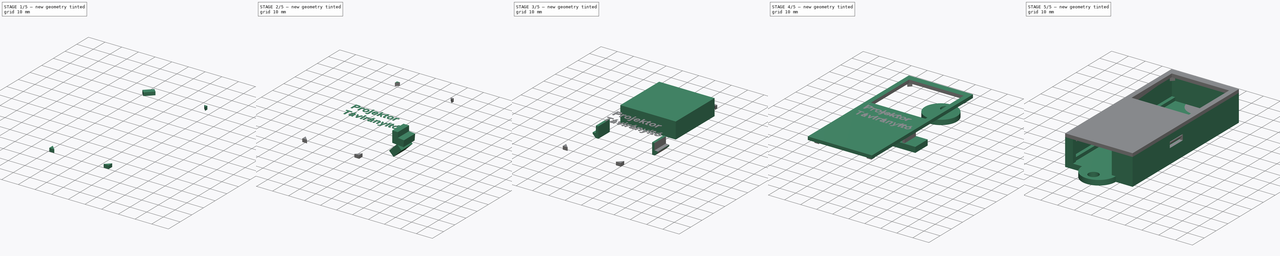
[diagram: build sequence overview — one tinted view per stage of 5, left to right]
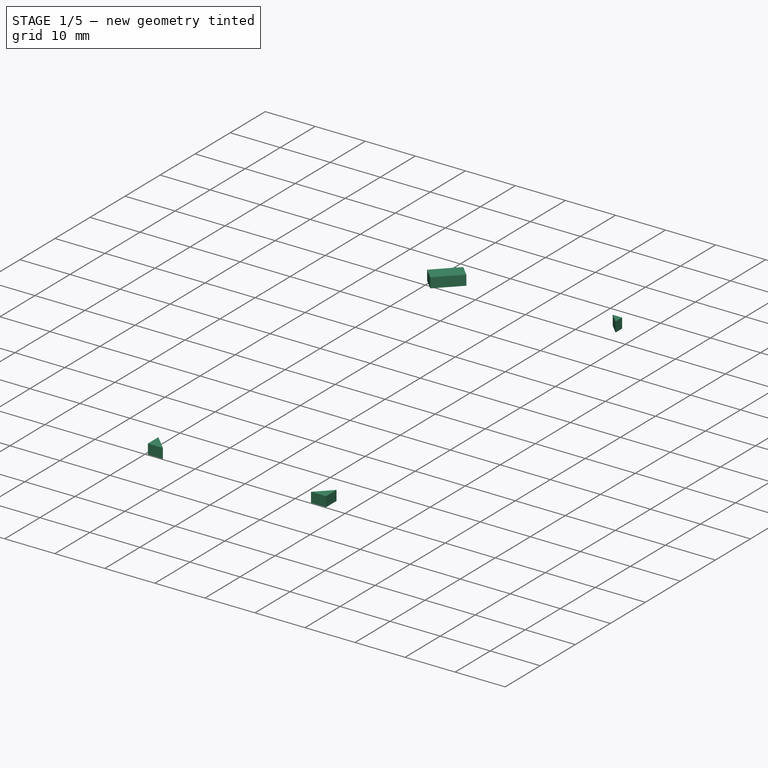
[diagram: stage 1 of 5 — iso view after this stage's code; geometry added in this stage tinted green]
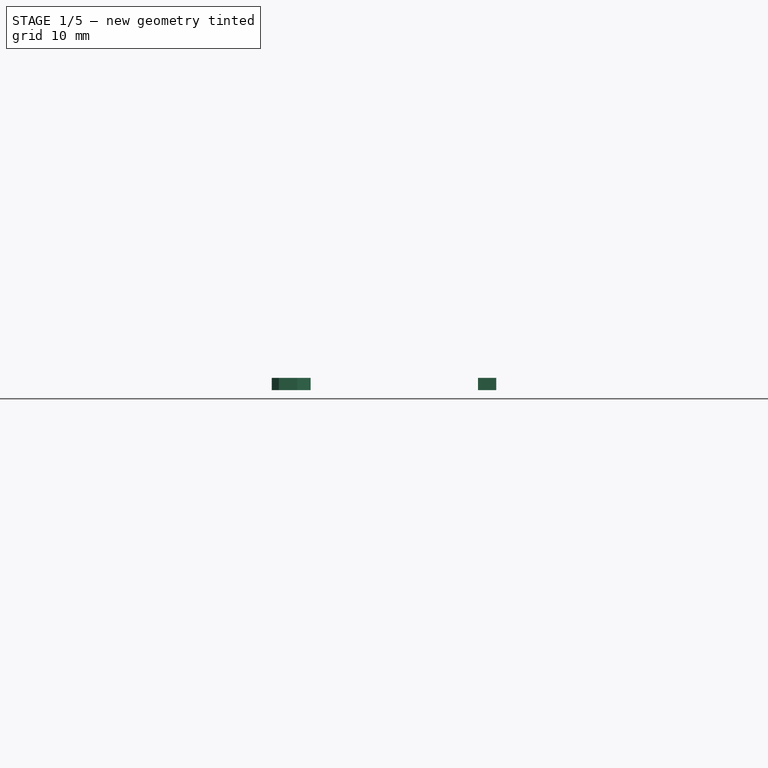
[diagram: stage 1 of 5 — front view after this stage's code; geometry added in this stage tinted green]
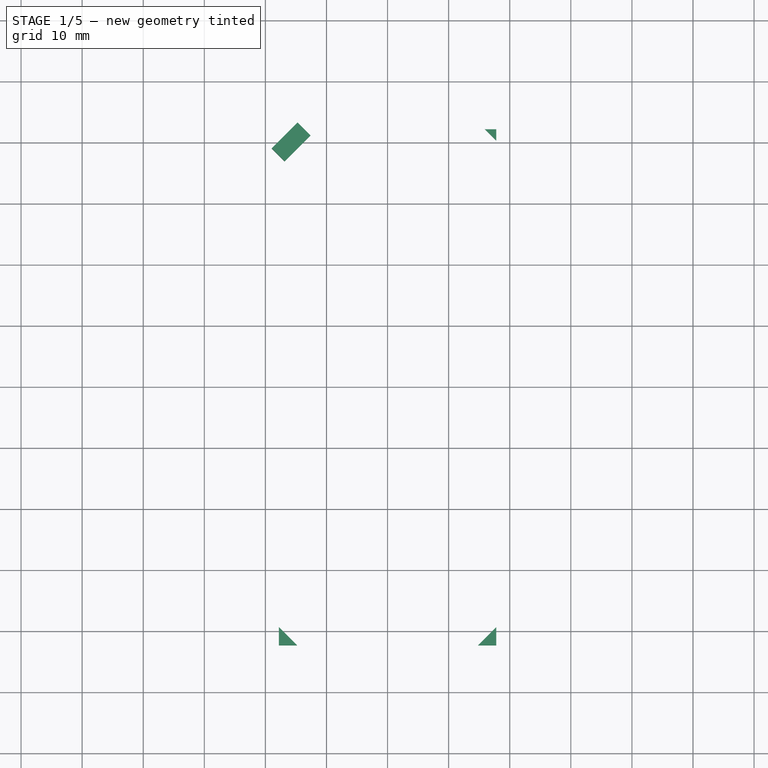
[diagram: stage 1 of 5 — top view after this stage's code; geometry added in this stage tinted green]
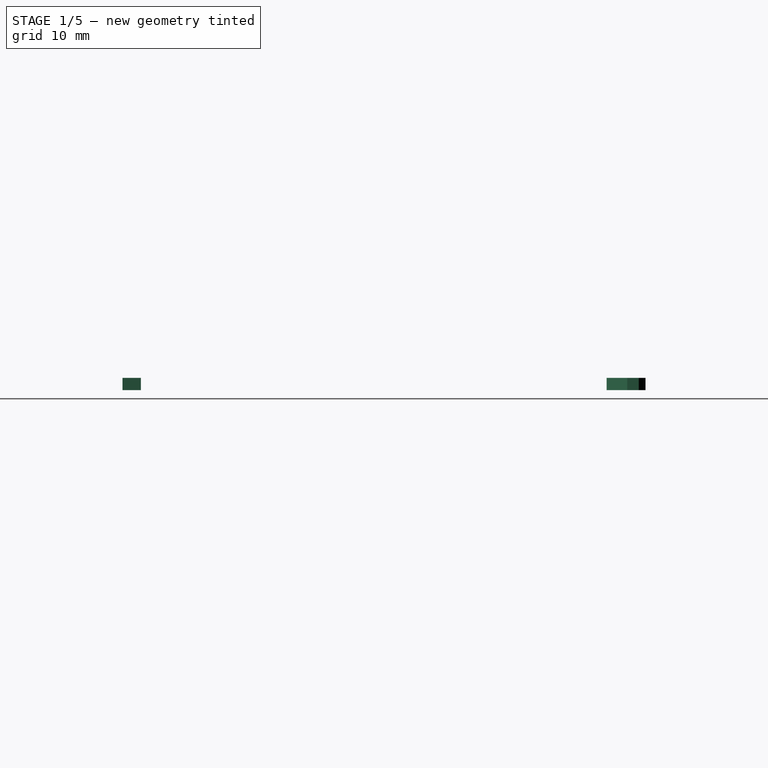
[diagram: stage 1 of 5 — right view after this stage's code; geometry added in this stage tinted green]
FCSTD DOCUMENT  (FreeCAD 0.21R33771 (Git))
Label: doboz_v4
License: All rights reserved
LicenseURL: http://en.wikipedia.org/wiki/All_rights_reserved
objects: App::Link×20, Part::Box×20, Part::Cut×13, Part::Feature×10, Part::Fuse×9, Sketcher::SketchObject×4, App::Part×4, Part::Cylinder×4, Part::MultiFuse×4, Part::Part2DObjectPython×4, Part::Extrusion×4, PartDesign::Pad×2, PartDesign::CoordinateSystem×1, PartDesign::Pocket×1, PartDesign::Body×1
note: 80 computed .brp shape members not serialized (recipe doc carries the construction recipe); baked Part::Feature solids carry a one-line shape summary decoded from their .brp

FEATURE [Part::Box] Box023  label="Cube023"
  AttacherType = Attacher::AttachEngine3D
  Height = 2
  Length = 6
  Placement = pos=(-16.8499,36.9415,14) rot=(0,0,1;0.785398rad)
  Width = 3
FEATURE [Part::Box] Box024  label="Cube024"
  AttacherType = Attacher::AttachEngine3D
  Height = 2
  Length = 3
  Placement = pos=(-17.7,39.2,14) rot=(0,0,1;0rad)
  Width = 3
FEATURE [Part::Box] Box025  label="Cube025"
  AttacherType = Attacher::AttachEngine3D
  Height = 2
  Length = 6
  Placement = pos=(-16.8499,36.9415,14) rot=(0,0,1;0.785398rad)
  Width = 3
FEATURE [Part::Cut] Cut015
  Base = -> Box024
  Placement = pos=(-24.4,24.5,0) rot=(0,0,-1;1.5708rad)
  Tool = -> Box025
FEATURE [Part::Box] Box026  label="Cube026"
  AttacherType = Attacher::AttachEngine3D
  Height = 2
  Length = 3
  Placement = pos=(-17.7,39.2,14) rot=(0,0,1;0rad)
  Width = 3
FEATURE [Part::Box] Box027  label="Cube027"
  AttacherType = Attacher::AttachEngine3D
  Height = 2
  Length = 6
  Placement = pos=(-16.2842,36.3758,14) rot=(0,0,1;0.785398rad)
  Width = 3
FEATURE [Part::Cut] Cut016
  Base = -> Box026
  Placement = pos=(0.1,-0.1,0) rot=(0,0,1;3.14159rad)
  Tool = -> Box027
FEATURE [Part::Box] Box028  label="Cube028"
  AttacherType = Attacher::AttachEngine3D
  Height = 2
  Length = 3
  Placement = pos=(-17.7,39.2,14) rot=(0,0,1;0rad)
  Width = 3
FEATURE [Part::Box] Box029  label="Cube029"
  AttacherType = Attacher::AttachEngine3D
  Height = 2
  Length = 6
  Placement = pos=(-16.2842,36.3758,14) rot=(0,0,1;0.785398rad)
  Width = 3
FEATURE [Part::Cut] Cut017
  Base = -> Box028
  Placement = pos=(24.4,-24.6,0) rot=(0,0,1;1.5708rad)
  Tool = -> Box029
FEATURE [Part::MultiFuse] Fusion013
  Shapes = -> [Cut016,Cut017]
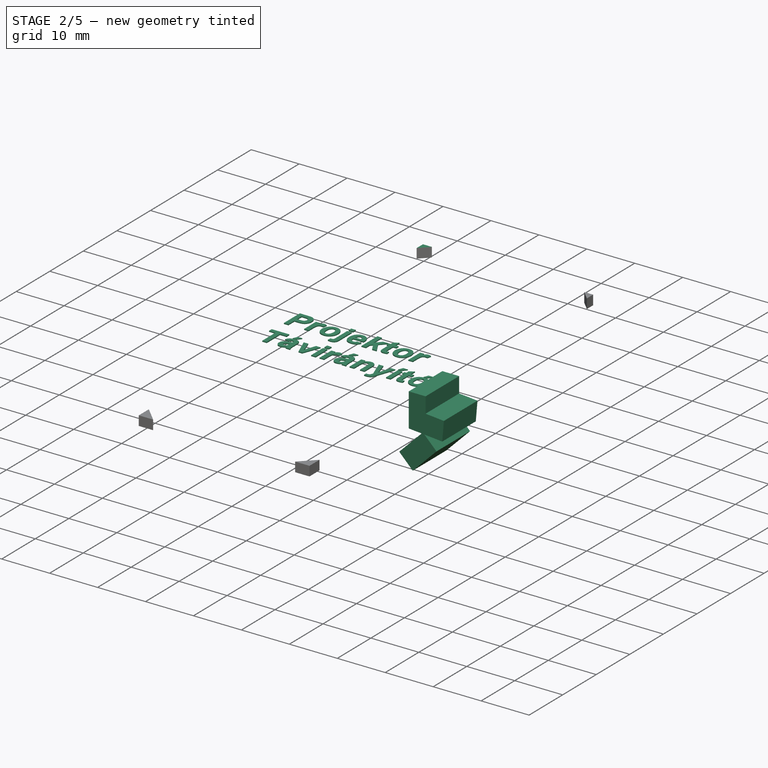
[diagram: stage 2 of 5 — iso view after this stage's code; geometry added in this stage tinted green]
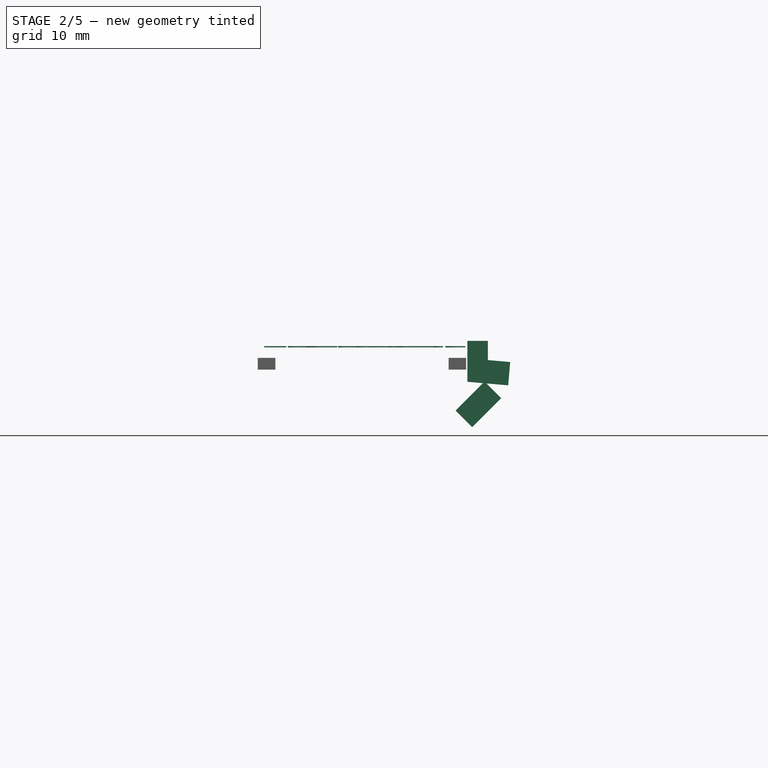
[diagram: stage 2 of 5 — front view after this stage's code; geometry added in this stage tinted green]
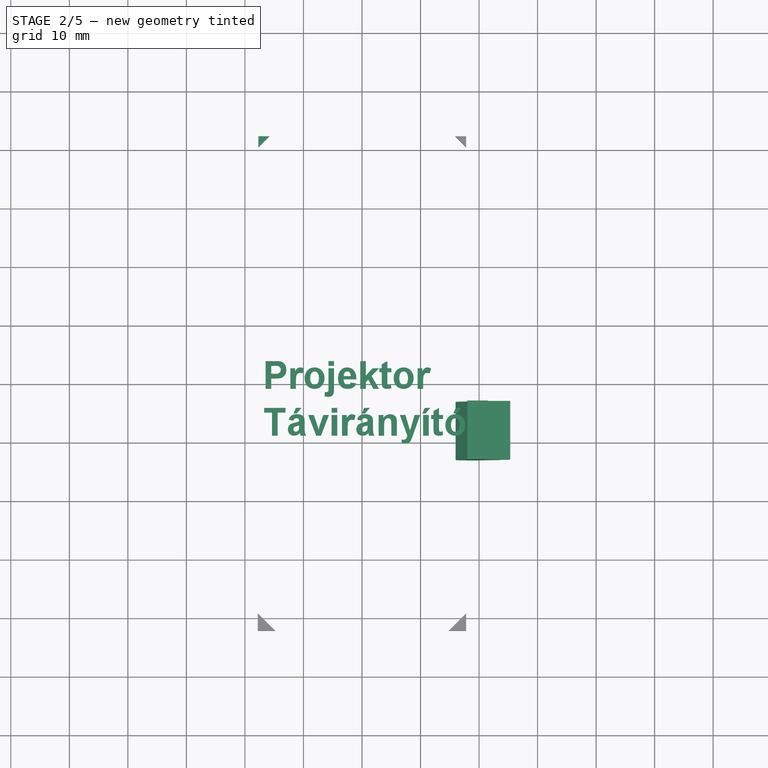
[diagram: stage 2 of 5 — top view after this stage's code; geometry added in this stage tinted green]
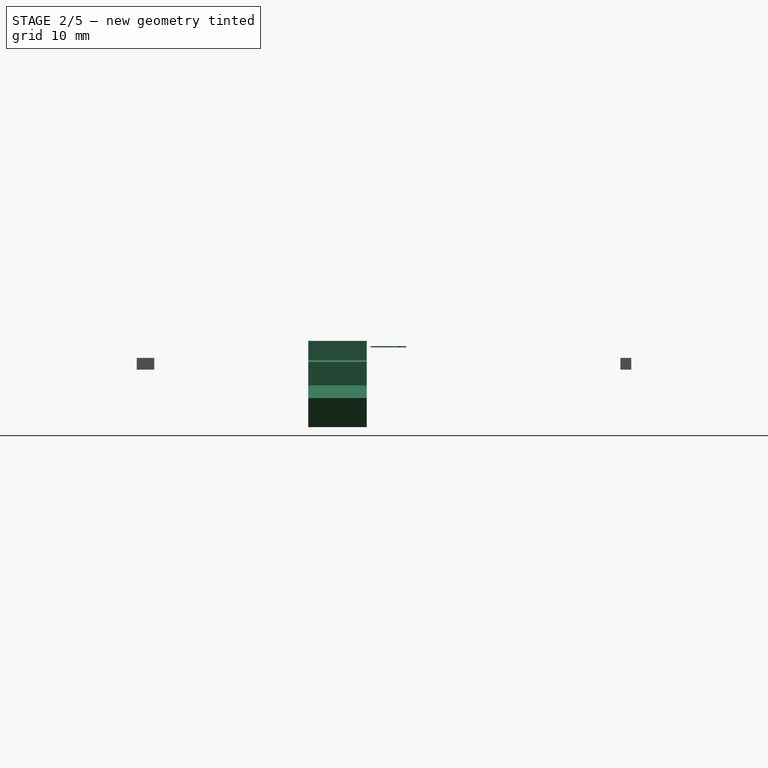
[diagram: stage 2 of 5 — right view after this stage's code; geometry added in this stage tinted green]
FEATURE [Part::Box] Box009  label="Cube009"
  AttacherType = Attacher::AttachEngine3D
  Height = 7
  Length = 4
  Placement = pos=(16,-13,7) rot=(0,1,0;0.785398rad)
  Width = 10
FEATURE [Part::Box] Box010  label="Cube010"
  AttacherType = Attacher::AttachEngine3D
  Height = 7
  Length = 4
  Placement = pos=(18.35,-13,15.9) rot=(0,1,0;1.65806rad)
  Width = 10
FEATURE [Part::Box] Box011  label="Cube011"
  AttacherType = Attacher::AttachEngine3D
  Height = 6.9
  Length = 3.5
  Placement = pos=(18,-13,12) rot=(0,0,1;0rad)
  Width = 10
FEATURE [Part::Fuse] Fusion003
  Base = -> Box009
  Tool = -> Box010
FEATURE [Part::Fuse] Fusion004
  Base = -> Box011
  Tool = -> Fusion003
FEATURE [Part::Part2DObjectPython] ShapeString  # Draft 2D object (typed FeaturePython)
  FontFile = <path>
  MakeFace = true
  Placement = pos=(-17,-1,20) rot=(0,0,1;0rad)
  Size = 5
  String = Projektor
  Tracking = 0
FEATURE [Part::Part2DObjectPython] ShapeString001  # Draft 2D object (typed FeaturePython)
  FontFile = <path>
  MakeFace = true
  Placement = pos=(-17,-9,20) rot=(0,0,1;0rad)
  Size = 5
  String = Távirányító
  Tracking = 0
FEATURE [Part::Extrusion] Extrude
  Base = -> ShapeString
  Dir = (0,0,1)
  DirMode = 2
  FaceMakerClass = Part::FaceMakerBullseye
  LengthFwd = 0.2
  LengthRev = 0
  Placement = pos=(0,0,0.1) rot=(0,0,1;0rad)
  Solid = false
  Symmetric = false
FEATURE [Part::Extrusion] Extrude001
  Base = -> ShapeString001
  Dir = (0,0,1)
  DirMode = 2
  FaceMakerClass = Part::FaceMakerBullseye
  LengthFwd = 0.2
  LengthRev = 0
  Placement = pos=(0,0,0.1) rot=(0,0,1;0rad)
  Solid = false
  Symmetric = false
FEATURE [Part::Fuse] Fusion007  label="Felirat"
  Base = -> Extrude
  Placement = pos=(0,0,-2.3) rot=(0,0,1;0rad)
  Tool = -> Extrude001
FEATURE [Part::Box] Box022  label="Cube022"
  AttacherType = Attacher::AttachEngine3D
  Height = 2
  Length = 3
  Placement = pos=(-17.7,39.2,14) rot=(0,0,1;0rad)
  Width = 3
FEATURE [Part::Cut] Cut014
  Base = -> Box022
  Tool = -> Box023
FEATURE [Part::Fuse] Fusion012
  Base = -> Cut014
  Tool = -> Cut015
FEATURE [Part::MultiFuse] Fusion014  label="Pockok"
  Shapes = -> [Fusion013,Fusion012]
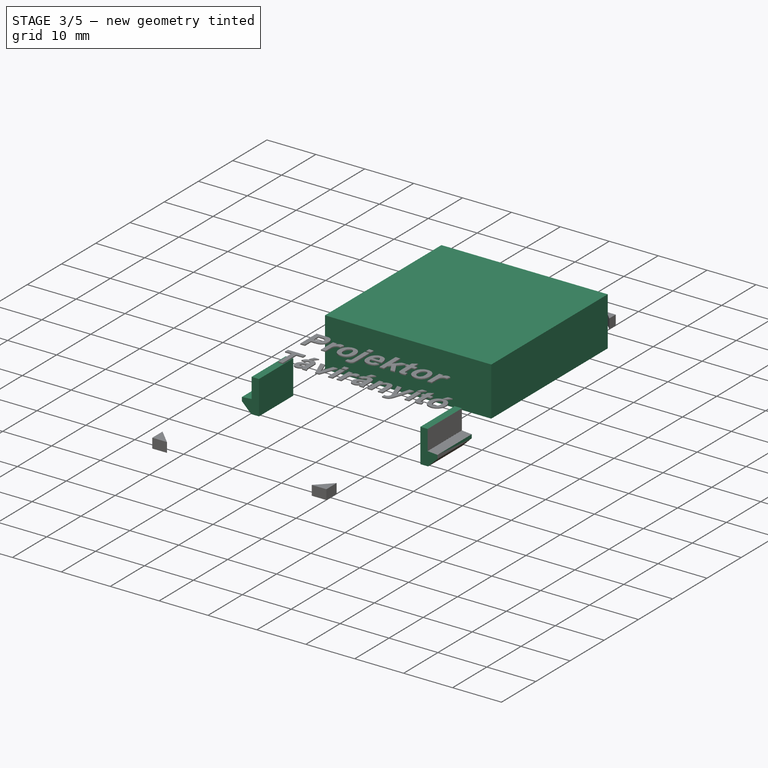
[diagram: stage 3 of 5 — iso view after this stage's code; geometry added in this stage tinted green]
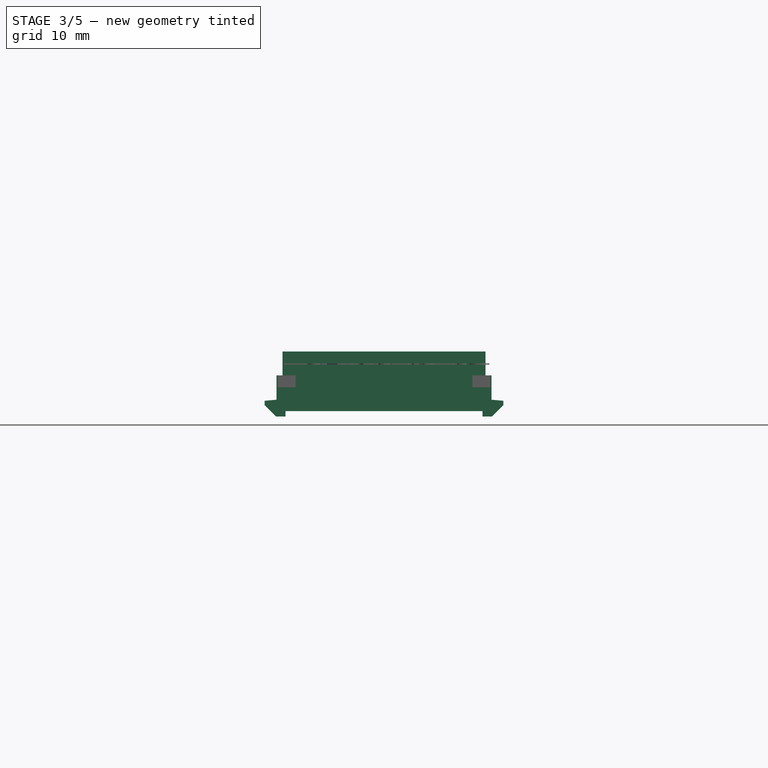
[diagram: stage 3 of 5 — front view after this stage's code; geometry added in this stage tinted green]
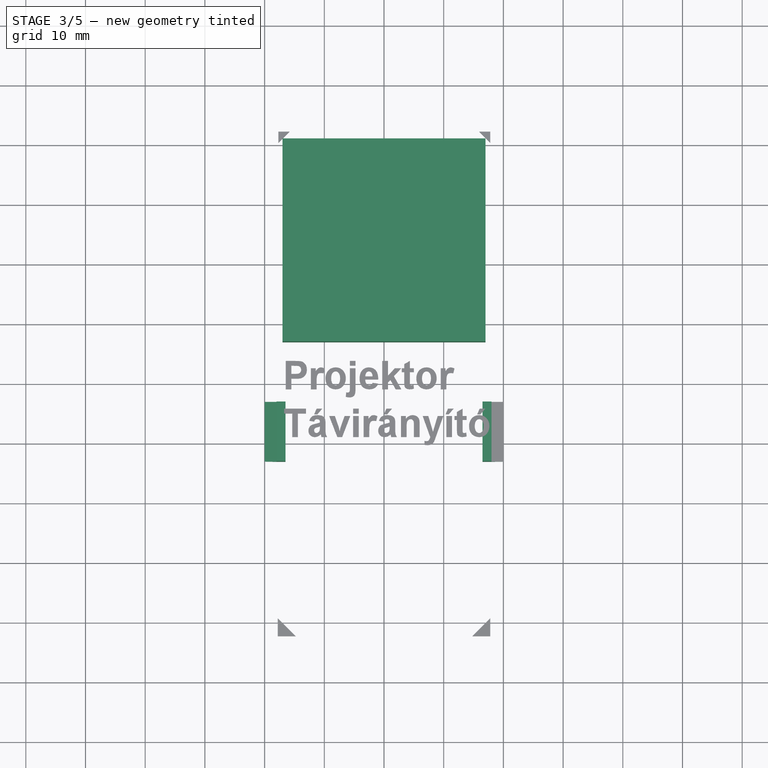
[diagram: stage 3 of 5 — top view after this stage's code; geometry added in this stage tinted green]
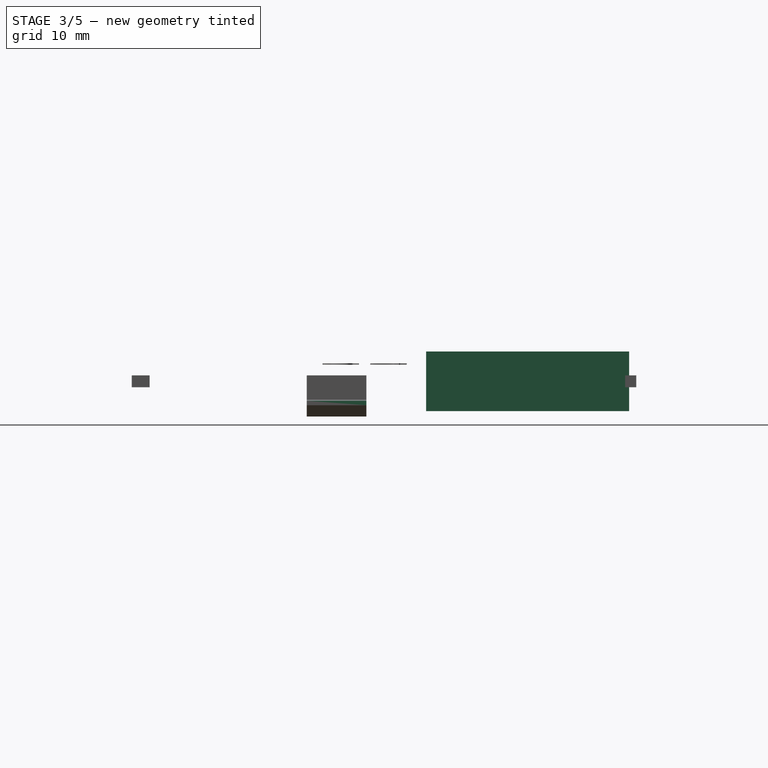
[diagram: stage 3 of 5 — right view after this stage's code; geometry added in this stage tinted green]
FEATURE [Part::Box] Box003  label="Cube003"
  AttacherType = Attacher::AttachEngine3D
  Height = 10
  Length = 34
  Placement = pos=(-17,7,10) rot=(0,0,1;0rad)
  Width = 34
FEATURE [Part::Box] Box004  label="Cube004"
  AttacherType = Attacher::AttachEngine3D
  Height = 6.9
  Length = 3.5
  Placement = pos=(16.5,-13,9.1) rot=(0,0,1;0rad)
  Width = 10
FEATURE [Part::Box] Box005  label="Cube005"
  AttacherType = Attacher::AttachEngine3D
  Height = 7
  Length = 4
  Placement = pos=(16,-13,7) rot=(0,1,0;0.785398rad)
  Width = 10
FEATURE [Part::Box] Box006  label="Cube006"
  AttacherType = Attacher::AttachEngine3D
  Height = 7
  Length = 4
  Placement = pos=(18.35,-13,15.9) rot=(0,1,0;1.65806rad)
  Width = 10
FEATURE [Part::Box] Box007  label="Cube007"
  AttacherType = Attacher::AttachEngine3D
  Height = 6.9
  Length = 3.5
  Placement = pos=(18,-13,12) rot=(0,0,1;0rad)
  Width = 10
FEATURE [Part::Fuse] Fusion001
  Base = -> Box005
  Tool = -> Box006
FEATURE [Part::Fuse] Fusion002
  Base = -> Box007
  Tool = -> Fusion001
FEATURE [Part::Cut] Cut006  label="Jobb karom"
  Base = -> Box004
  Tool = -> Fusion002
FEATURE [Part::Box] Box008  label="Cube008"
  AttacherType = Attacher::AttachEngine3D
  Height = 6.9
  Length = 3.5
  Placement = pos=(16.5,-13,9.1) rot=(0,0,1;0rad)
  Width = 10
FEATURE [Part::Cut] Cut007  label="Bal karom"
  Base = -> Box008
  Placement = pos=(-2e-15,-16,0) rot=(0,0,1;3.14159rad)
  Tool = -> Fusion004
FEATURE [Part::Fuse] Fusion005  label="Karmok"
  Base = -> Cut006
  Tool = -> Cut007
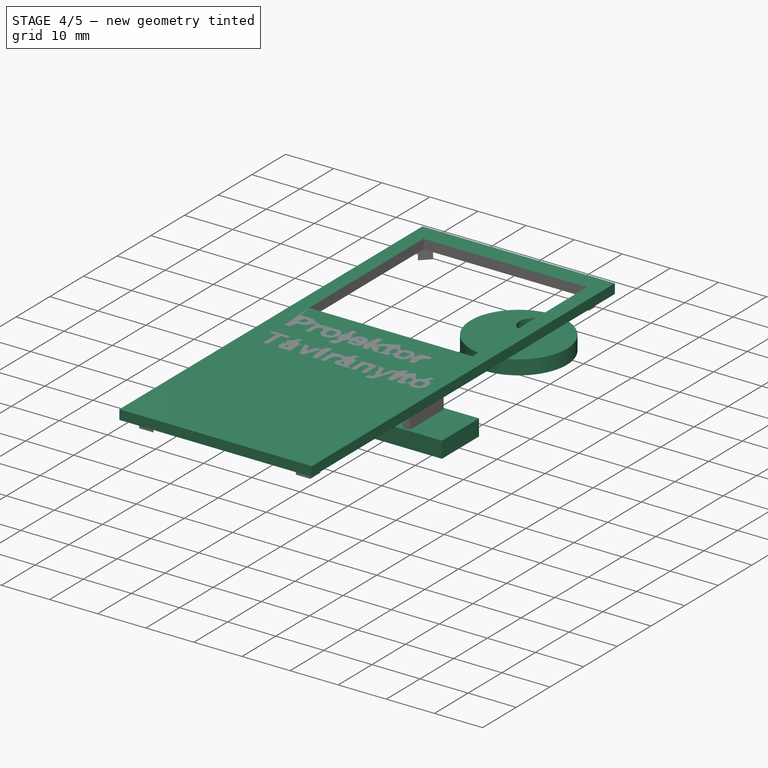
[diagram: stage 4 of 5 — iso view after this stage's code; geometry added in this stage tinted green]
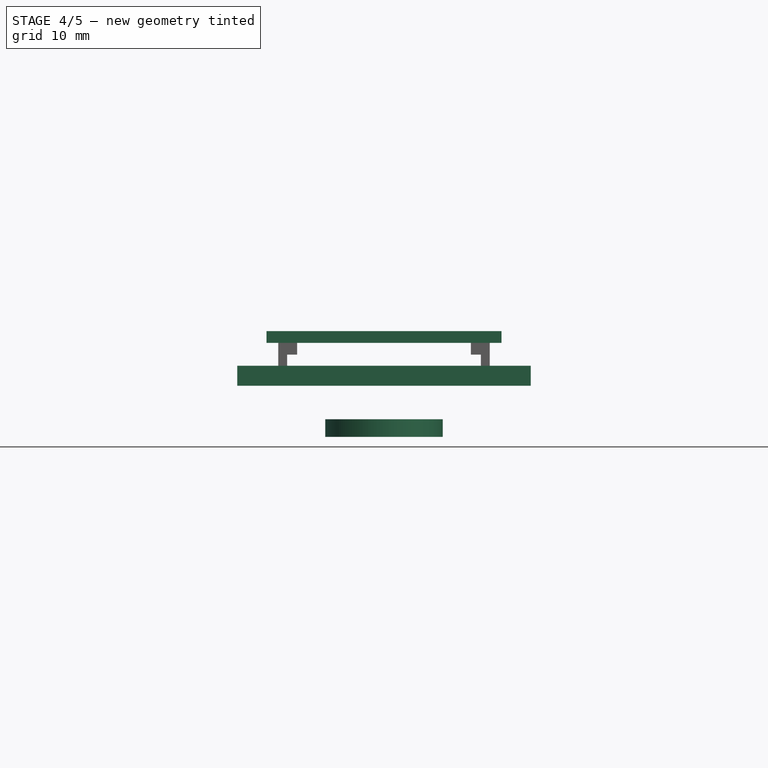
[diagram: stage 4 of 5 — front view after this stage's code; geometry added in this stage tinted green]
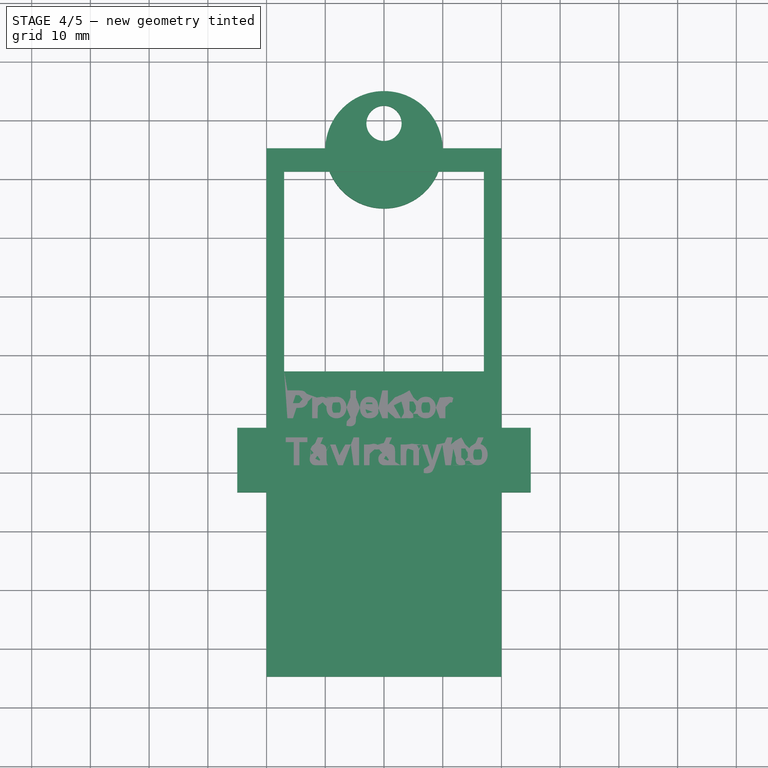
[diagram: stage 4 of 5 — top view after this stage's code; geometry added in this stage tinted green]
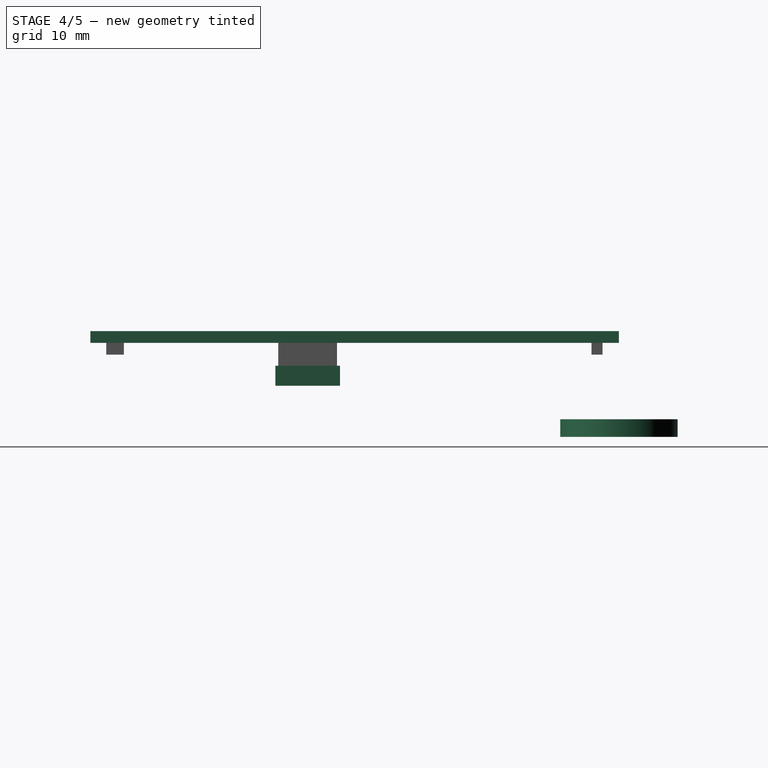
[diagram: stage 4 of 5 — right view after this stage's code; geometry added in this stage tinted green]
FEATURE [Part::Cylinder] Cylinder002
  Angle = 360
  AttacherType = Attacher::AttachEngine3D
  FirstAngle = 0
  Height = 3
  Placement = pos=(0,45,0) rot=(0,0,1;0rad)
  Radius = 10
  SecondAngle = 0
FEATURE [Part::Cylinder] Cylinder003
  Angle = 360
  AttacherType = Attacher::AttachEngine3D
  FirstAngle = 0
  Height = 5
  Placement = pos=(0,49.5,-1) rot=(0,0,1;0rad)
  Radius = 3
  SecondAngle = 0
FEATURE [Part::Cut] Cut003  label="felso ful"
  Base = -> Cylinder002
  Tool = -> Cylinder003
FEATURE [Part::Box] Box002  label="Cube002"
  AttacherType = Attacher::AttachEngine3D
  Height = 3.4
  Length = 50
  Placement = pos=(-25,-13.5,8.7) rot=(0,0,1;0rad)
  Width = 11
FEATURE [Sketcher::SketchObject] Sketch002
  FullyConstrained = true
  MapMode = 5
  Placement = pos=(0,0,16) rot=(0,0,1;0rad)
  sketch-geometry (4):
    g0: LineSegment StartX=-20 StartY=45 StartZ=0 EndX=20 EndY=45 EndZ=0
    g1: LineSegment StartX=20 StartY=45 StartZ=0 EndX=20 EndY=-45 EndZ=0
    g2: LineSegment StartX=20 StartY=-45 StartZ=0 EndX=-20 EndY=-45 EndZ=0
    g3: LineSegment StartX=-20 StartY=-45 StartZ=0 EndX=-20 EndY=45 EndZ=0
  constraints (11):
    c: Coincident(g0,g1)
    c: Coincident(g1,g2)
    c: Coincident(g2,g3)
    c: Coincident(g3,g0)
    c: Horizontal(g0)
    c: Horizontal(g2)
    c: Vertical(g1)
    c: Vertical(g3)
    c: Symmetric(g2,g0,g-1)
    c: DistanceX(g0,g0) = 40
    c: DistanceY(g1,g1) = 90
FEATURE [PartDesign::Pad] Pad001
  Direction = (0,0,1)
  Length = 2
  Length2 = 10
  Placement = pos=(0,0,16) rot=(0,0,1;0rad)
  Profile = -> Sketch002
  ReferenceAxis = -> Sketch002 [N_Axis]
  Type = 0
FEATURE [Part::Cut] Cut005  label="Teto"
  Base = -> Pad001
  Tool = -> Box003
FEATURE [Part::Fuse] Fusion006  label="Teto001"
  Base = -> Cut005
  Tool = -> Fusion005
FEATURE [Part::Cut] Cut008  label="Felso"
  Base = -> Fusion006
  Tool = -> Fusion007
FEATURE [Part::Part2DObjectPython] ShapeString002  # Draft 2D object (typed FeaturePython)
  FontFile = <path>
  MakeFace = true
  Placement = pos=(-17,-1,20) rot=(0,0,1;0rad)
  Size = 5
  String = Projektor
  Tracking = 0
FEATURE [Part::Extrusion] Extrude002
  Base = -> ShapeString002
  Dir = (0,0,1)
  DirMode = 2
  FaceMakerClass = Part::FaceMakerBullseye
  LengthFwd = 0.2
  LengthRev = 0
  Placement = pos=(0,0,0.1) rot=(0,0,1;0rad)
  Solid = false
  Symmetric = false
FEATURE [Part::Part2DObjectPython] ShapeString003  # Draft 2D object (typed FeaturePython)
  FontFile = <path>
  MakeFace = true
  Placement = pos=(-17,-9,20) rot=(0,0,1;0rad)
  Size = 5
  String = Távirányító
  Tracking = 0
FEATURE [Part::Extrusion] Extrude003
  Base = -> ShapeString003
  Dir = (0,0,1)
  DirMode = 2
  FaceMakerClass = Part::FaceMakerBullseye
  LengthFwd = 0.2
  LengthRev = 0
  Placement = pos=(0,0,0.1) rot=(0,0,1;0rad)
  Solid = false
  Symmetric = false
FEATURE [Part::Fuse] Fusion016  label="Felirat001"
  Base = -> Extrude002
  Placement = pos=(0,0,-2.3) rot=(0,0,1;0rad)
  Tool = -> Extrude003
FEATURE [Part::MultiFuse] Fusion015  label="Felso2"
  Shapes = -> [Cut008,Fusion014]
note: 4 file-system paths scrubbed to <path> (originals preserved in the JSON sidecar)
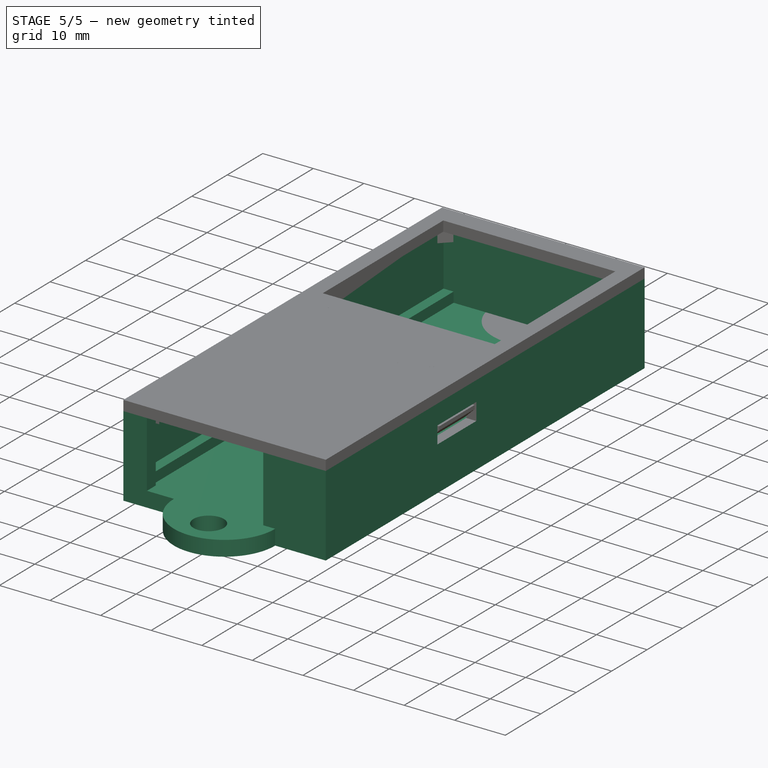
[diagram: stage 5 of 5 — iso view after this stage's code; geometry added in this stage tinted green]
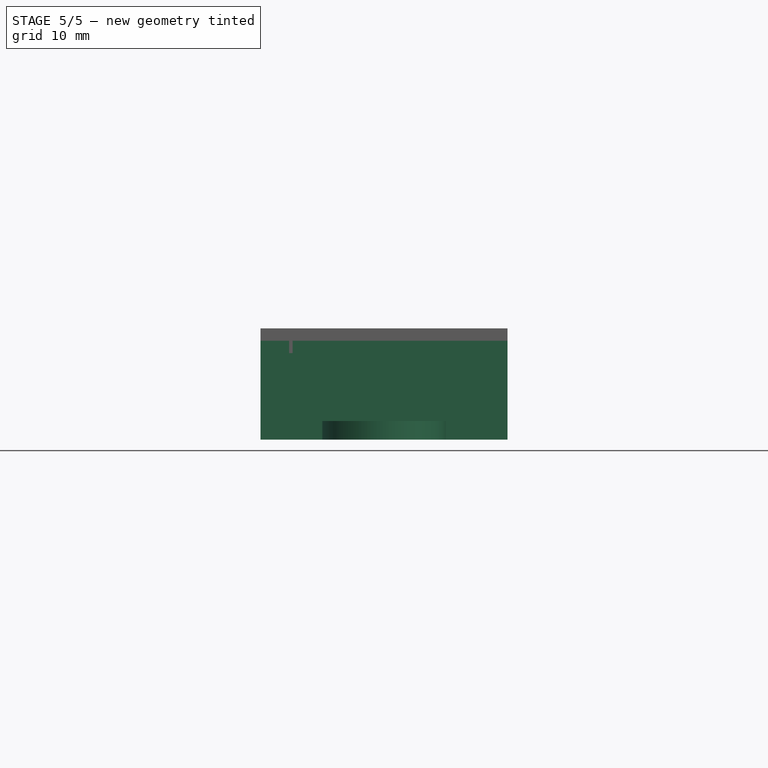
[diagram: stage 5 of 5 — front view after this stage's code; geometry added in this stage tinted green]
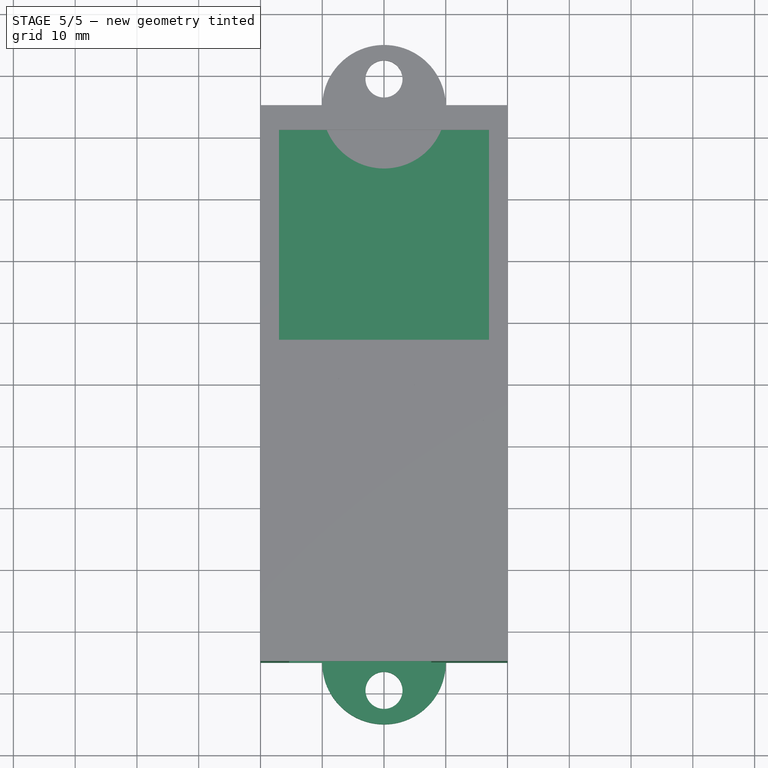
[diagram: stage 5 of 5 — top view after this stage's code; geometry added in this stage tinted green]
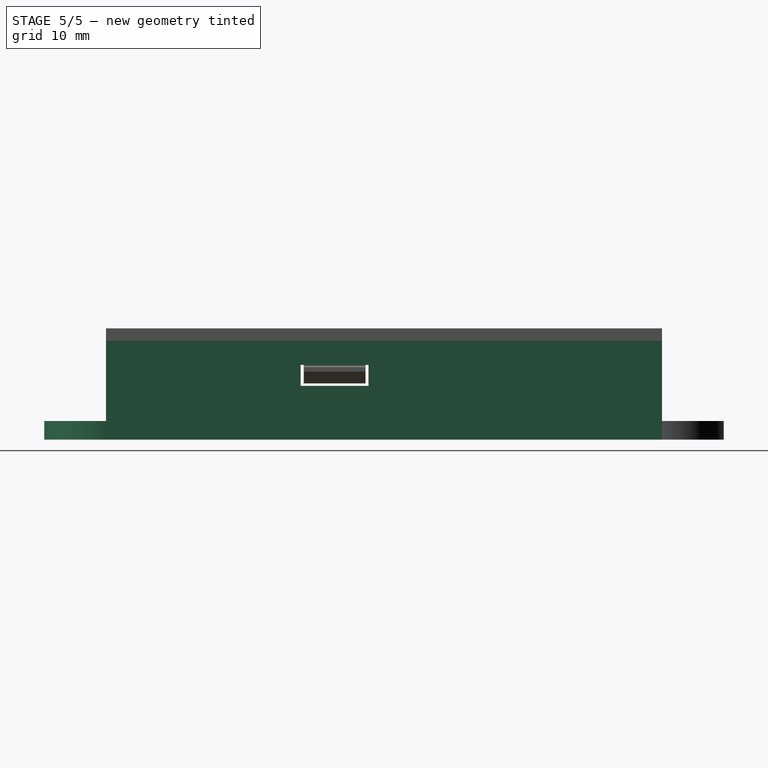
[diagram: stage 5 of 5 — right view after this stage's code; geometry added in this stage tinted green]
FEATURE [PartDesign::CoordinateSystem] Local_CS_c95c
  AttacherType = Attacher::AttachEngine3D
  MapMode = 2
  Support = -> [X_Axis001]
FEATURE [Part::Feature] Pcb_c95c
  shape: bbox 35.56 x 84.46 x 1.6 mm, 51 faces (baked)
FEATURE [Sketcher::SketchObject] PCB_Sketch_c95c
  FullyConstrained = false
  sketch-geometry (8):
    g0: LineSegment StartX=128.905 StartY=-49.53 StartZ=0 EndX=161.925 EndY=-49.53 EndZ=0
    g1: LineSegment StartX=163.195 StartY=-50.8 StartZ=0 EndX=163.195 EndY=-132.715 EndZ=0
    g2: LineSegment StartX=161.925 StartY=-133.985 StartZ=0 EndX=128.905 EndY=-133.985 EndZ=0
    g3: LineSegment StartX=127.635 StartY=-132.715 StartZ=0 EndX=127.635 EndY=-50.8 EndZ=0
    g4: ArcOfCircle CenterX=161.925 CenterY=-132.715 CenterZ=0 NormalX=0 NormalY=0 NormalZ=-1 AngleXU=3.14159 Radius=1.27 StartAngle=0 EndAngle=1.5708
    g5: ArcOfCircle CenterX=161.925 CenterY=-50.8 CenterZ=0 NormalX=0 NormalY=0 NormalZ=-1 AngleXU=1.5708 Radius=1.27 StartAngle=0 EndAngle=1.5708
    g6: ArcOfCircle CenterX=128.905 CenterY=-132.715 CenterZ=0 NormalX=0 NormalY=0 NormalZ=-1 AngleXU=-1.5708 Radius=1.27 StartAngle=0 EndAngle=1.5708
    g7: ArcOfCircle CenterX=128.905 CenterY=-50.8 CenterZ=0 NormalX=0 NormalY=0 NormalZ=-1 AngleXU=-1.04279e-06 Radius=1.27 StartAngle=0 EndAngle=1.5708
  constraints (8):
    c: Coincident(g3,g6)
    c: Coincident(g3,g7)
    c: Coincident(g2,g6)
    c: Coincident(g0,g7)
    c: Coincident(g2,g4)
    c: Coincident(g0,g5)
    c: Coincident(g1,g4)
    c: Coincident(g1,g5)
FEATURE [App::Part] Board_Geoms_c95c
  Group = -> [Pcb_c95c,PCB_Sketch_c95c]
  Origin = -> Origin
FEATURE [Part::Feature] Shape  label="J2_MC_01x03_G_3_5mm_12e7bac8dbaf"
  Placement = pos=(133.35,-127.8,0) rot=(0,0,1;0rad)
  shape: bbox 11.9 x 9.2 x 10.95 mm, 109 faces (baked)
FEATURE [Part::Feature] Shape001  label="R8_R_0805_2012Metric_695cc4dfc1c9"
  Placement = pos=(147.955,-105.045,0) rot=(0,0,-1;1.5708rad)
  shape: bbox 1.2 x 2 x 0.45 mm, 26 faces (baked)
FEATURE [App::Link] R8_R_0805_2012Metric_695cc4dfc1c9_ln_  label="R7_R_0805_2012Metric_1dec0fc7b793"
  LinkPlacement = pos=(140.335,-105.045,0) rot=(0,0,-1;1.5708rad)
  LinkedObject = -> Shape001
  Placement = pos=(140.335,-105.045,0) rot=(0,0,-1;1.5708rad)
FEATURE [App::Link] R8_R_0805_2012Metric_695cc4dfc1c9_ln_001  label="R2_R_0805_2012Metric_06d124cb7809"
  LinkPlacement = pos=(147.955,-85.455,0) rot=(0,0,-1;1.5708rad)
  LinkedObject = -> Shape001
  Placement = pos=(147.955,-85.455,0) rot=(0,0,-1;1.5708rad)
FEATURE [Part::Feature] Shape002  label="Y1_Crystal_SMD_HC49-SD_3ddabce48a06"
  Placement = pos=(158.75,-93.7575,0) rot=(0,0,-1;1.5708rad)
  shape: bbox 4.65 x 12.5 x 4 mm, 45 faces (baked)
FEATURE [App::Link] R8_R_0805_2012Metric_695cc4dfc1c9_ln_002  label="R4_R_0805_2012Metric_505b780dc60c"
  LinkPlacement = pos=(150.495,-85.455,0) rot=(0,0,-1;1.5708rad)
  LinkedObject = -> Shape001
  Placement = pos=(150.495,-85.455,0) rot=(0,0,-1;1.5708rad)
FEATURE [Part::Feature] Shape003  label="C1_C_0805_2012Metric_832210f2bbc2"
  Placement = pos=(144.145,-111.125,0) rot=(0,0,-1;1.5708rad)
  shape: bbox 1.25 x 2 x 1.25 mm, 28 faces (baked)
FEATURE [Part::Feature] Shape004  label="U2_TQFP_32_7x7mm_P08mm_a250dbf983b6"
  Placement = pos=(146.05,-96.325,0) rot=(0,0,1;3.14159rad)
  shape: bbox 9 x 9 x 1.1 mm, 524 faces (baked)
FEATURE [App::Link] C1_C_0805_2012Metric_832210f2bbc2_ln_  label="C8_C_0805_2012Metric_ab9b9865c1a4"
  LinkPlacement = pos=(150.495,-105.045,0) rot=(0,0,-1;1.5708rad)
  LinkedObject = -> Shape003
  Placement = pos=(150.495,-105.045,0) rot=(0,0,-1;1.5708rad)
FEATURE [App::Link] R8_R_0805_2012Metric_695cc4dfc1c9_ln_003  label="R1_R_0805_2012Metric_42dd2f91408d"
  LinkPlacement = pos=(145.415,-85.455,0) rot=(0,0,-1;1.5708rad)
  LinkedObject = -> Shape001
  Placement = pos=(145.415,-85.455,0) rot=(0,0,-1;1.5708rad)
FEATURE [App::Link] C1_C_0805_2012Metric_832210f2bbc2_ln_001  label="C10_C_0805_2012Metric_214e87fad23c"
  LinkPlacement = pos=(154.94,-90.5925,0) rot=(0,0,1;1.5708rad)
  LinkedObject = -> Shape003
  Placement = pos=(154.94,-90.5925,0) rot=(0,0,1;1.5708rad)
FEATURE [App::Link] C1_C_0805_2012Metric_832210f2bbc2_ln_002  label="C7_C_0805_2012Metric_c17aca5c7309"
  LinkPlacement = pos=(135.255,-105.05,0) rot=(0,0,1;1.5708rad)
  LinkedObject = -> Shape003
  Placement = pos=(135.255,-105.05,0) rot=(0,0,1;1.5708rad)
FEATURE [App::Link] R8_R_0805_2012Metric_695cc4dfc1c9_ln_004  label="R5_R_0805_2012Metric_112414900c65"
  LinkPlacement = pos=(142.875,-105.045,0) rot=(0,0,-1;1.5708rad)
  LinkedObject = -> Shape001
  Placement = pos=(142.875,-105.045,0) rot=(0,0,-1;1.5708rad)
FEATURE [App::Link] R8_R_0805_2012Metric_695cc4dfc1c9_ln_005  label="R6_R_0805_2012Metric_4845fc43690d"
  LinkPlacement = pos=(145.415,-105.045,0) rot=(0,0,-1;1.5708rad)
  LinkedObject = -> Shape001
  Placement = pos=(145.415,-105.045,0) rot=(0,0,-1;1.5708rad)
FEATURE [Part::Feature] Shape005  label="J1_MC_01x02_G_3_5mm_f8f39d346681"
  Placement = pos=(146.685,-127.8,0) rot=(0,0,1;0rad)
  shape: bbox 8.4 x 9.2 x 10.95 mm, 76 faces (baked)
FEATURE [App::Link] C1_C_0805_2012Metric_832210f2bbc2_ln_003  label="C3_C_0805_2012Metric_9e17c8a9d3fa"
  LinkPlacement = pos=(141.605,-111.125,0) rot=(0,0,-1;1.5708rad)
  LinkedObject = -> Shape003
  Placement = pos=(141.605,-111.125,0) rot=(0,0,-1;1.5708rad)
FEATURE [Part::Feature] Shape006  label="SW4_SW_Tactile_SPST_Angled_PTS645Vx83-2LFS_4b6979eed0d8"
  Placement = pos=(153.765,-75.565,0) rot=(0,0,1;0rad)
  shape: bbox 7.4 x 12.4 x 11 mm, 130 faces (baked)
FEATURE [App::Link] C1_C_0805_2012Metric_832210f2bbc2_ln_004  label="C4_C_0805_2012Metric_3511352402e0"
  LinkPlacement = pos=(139.065,-111.125,0) rot=(0,0,-1;1.5708rad)
  LinkedObject = -> Shape003
  Placement = pos=(139.065,-111.125,0) rot=(0,0,-1;1.5708rad)
FEATURE [App::Link] C1_C_0805_2012Metric_832210f2bbc2_ln_005  label="C5_C_0805_2012Metric_4ac7ce9f2495"
  LinkPlacement = pos=(137.795,-105.05,0) rot=(0,0,1;1.5708rad)
  LinkedObject = -> Shape003
  Placement = pos=(137.795,-105.05,0) rot=(0,0,1;1.5708rad)
FEATURE [App::Link] C1_C_0805_2012Metric_832210f2bbc2_ln_006  label="C9_C_0805_2012Metric_8d662bc7dd84"
  LinkPlacement = pos=(154.94,-96.4775,0) rot=(0,0,-1;1.5708rad)
  LinkedObject = -> Shape003
  Placement = pos=(154.94,-96.4775,0) rot=(0,0,-1;1.5708rad)
FEATURE [Part::Feature] Shape007  label="J3_PinHeader_1x06_P254mm_Vertical_726634c3bc6e"
  Placement = pos=(159.385,-107.315,0) rot=(0,0,1;0rad)
  shape: bbox 2.54 x 15.24 x 11.54 mm, 148 faces (baked)
FEATURE [App::Link] C1_C_0805_2012Metric_832210f2bbc2_ln_007  label="C6_C_0805_2012Metric_039449caf999"
  LinkPlacement = pos=(149.225,-111.125,0) rot=(0,0,1;1.5708rad)
  LinkedObject = -> Shape003
  Placement = pos=(149.225,-111.125,0) rot=(0,0,1;1.5708rad)
FEATURE [App::Link] R8_R_0805_2012Metric_695cc4dfc1c9_ln_006  label="R3_R_0805_2012Metric_d307000121b8"
  LinkPlacement = pos=(142.875,-85.455,0) rot=(0,0,-1;1.5708rad)
  LinkedObject = -> Shape001
  Placement = pos=(142.875,-85.455,0) rot=(0,0,-1;1.5708rad)
FEATURE [App::Link] SW4_SW_Tactile_SPST_Angled_PTS645Vx83_2LFS_4b6979eed0d8_ln_  label="SW1_SW_Tactile_SPST_Angled_PTS645Vx83-2LFS_7c47e2053204"
  LinkPlacement = pos=(137.255,-59.055,0) rot=(0,0,1;0rad)
  LinkedObject = -> Shape006
  Placement = pos=(137.255,-59.055,0) rot=(0,0,1;0rad)
FEATURE [App::Link] SW4_SW_Tactile_SPST_Angled_PTS645Vx83_2LFS_4b6979eed0d8_ln_001  label="SW2_SW_Tactile_SPST_Angled_PTS645Vx83-2LFS_560897fed6b5"
  LinkPlacement = pos=(153.765,-59.055,0) rot=(0,0,1;0rad)
  LinkedObject = -> Shape006
  Placement = pos=(153.765,-59.055,0) rot=(0,0,1;0rad)
FEATURE [Part::Feature] Shape008  label="J4_PinHeader_2x03_P254mm_Vertical_2c30eb3d481b"
  Placement = pos=(133.175,-87.01,0) rot=(0,0,1;0rad)
  shape: bbox 5.08 x 7.62 x 11.54 mm, 130 faces (baked)
FEATURE [App::Link] R8_R_0805_2012Metric_695cc4dfc1c9_ln_007  label="R9_R_0805_2012Metric_9c7358e0243b"
  LinkPlacement = pos=(153.035,-105.045,0) rot=(0,0,-1;1.5708rad)
  LinkedObject = -> Shape001
  Placement = pos=(153.035,-105.045,0) rot=(0,0,-1;1.5708rad)
FEATURE [App::Link] C1_C_0805_2012Metric_832210f2bbc2_ln_008  label="C2_C_0805_2012Metric_125af606e1f5"
  LinkPlacement = pos=(146.685,-111.125,0) rot=(0,0,-1;1.5708rad)
  LinkedObject = -> Shape003
  Placement = pos=(146.685,-111.125,0) rot=(0,0,-1;1.5708rad)
FEATURE [App::Link] SW4_SW_Tactile_SPST_Angled_PTS645Vx83_2LFS_4b6979eed0d8_ln_002  label="SW3_SW_Tactile_SPST_Angled_PTS645Vx83-2LFS_51f10fb3730e"
  LinkPlacement = pos=(137.255,-75.565,0) rot=(0,0,1;0rad)
  LinkedObject = -> Shape006
  Placement = pos=(137.255,-75.565,0) rot=(0,0,1;0rad)
FEATURE [App::Part] Top_c95c
  Group = -> [Shape,Shape001,R8_R_0805_2012Metric_695cc4dfc1c9_ln_,R8_R_0805_2012Metric_695cc4dfc1c9_ln_001,Shape002,R8_R_0805_2012Metric_695cc4dfc1c9_ln_002,Shape003,Shape004,C1_C_0805_2012Metric_832210f2bbc2_ln_,R8_R_0805_2012Metric_695cc4dfc1c9_ln_003,C1_C_0805_2012Metric_832210f2bbc2_ln_001,C1_C_0805_2012Metric_832210f2bbc2_ln_002,R8_R_0805_2012Metric_695cc4dfc1c9_ln_004,+16 more]
  Origin = -> Origin003
FEATURE [App::Part] Step_Models_c95c
  Group = -> [Top_c95c]
  Origin = -> Origin002
FEATURE [App::Part] Board_c95c  label="SEM_ProjektoroSCH-Rev2"
  Group = -> [Local_CS_c95c,Board_Geoms_c95c,Step_Models_c95c]
  Origin = -> Origin001
  Placement = pos=(-145.45,91.75,6.6) rot=(0,0,1;0rad)
FEATURE [Sketcher::SketchObject] Sketch
  FullyConstrained = true
  MapMode = 5
  Support = -> [XY_Plane004]
  sketch-geometry (4):
    g0: LineSegment StartX=-20 StartY=45 StartZ=0 EndX=20 EndY=45 EndZ=0
    g1: LineSegment StartX=20 StartY=45 StartZ=0 EndX=20 EndY=-45 EndZ=0
    g2: LineSegment StartX=20 StartY=-45 StartZ=0 EndX=-20 EndY=-45 EndZ=0
    g3: LineSegment StartX=-20 StartY=-45 StartZ=0 EndX=-20 EndY=45 EndZ=0
  constraints (11):
    c: Coincident(g0,g1)
    c: Coincident(g1,g2)
    c: Coincident(g2,g3)
    c: Coincident(g3,g0)
    c: Horizontal(g0)
    c: Horizontal(g2)
    c: Vertical(g1)
    c: Vertical(g3)
    c: Symmetric(g2,g0,g-1)
    c: DistanceX(g0,g0) = 40
    c: DistanceY(g1,g1) = 90
FEATURE [PartDesign::Pad] Pad
  Direction = (0,0,1)
  Length = 16
  Length2 = 10
  Profile = -> Sketch
  ReferenceAxis = -> Sketch [N_Axis]
  Type = 0
FEATURE [Sketcher::SketchObject] Sketch001
  FullyConstrained = true
  MapMode = 5
  Placement = pos=(0,0,16) rot=(0,0,1;0rad)
  Support = -> [Pad]
  sketch-geometry (4):
    g0: LineSegment StartX=-16 StartY=42.5 StartZ=0 EndX=16 EndY=42.5 EndZ=0
    g1: LineSegment StartX=16 StartY=42.5 StartZ=0 EndX=16 EndY=-42.5 EndZ=0
    g2: LineSegment StartX=16 StartY=-42.5 StartZ=0 EndX=-16 EndY=-42.5 EndZ=0
    g3: LineSegment StartX=-16 StartY=-42.5 StartZ=0 EndX=-16 EndY=42.5 EndZ=0
  constraints (11):
    c: Coincident(g0,g1)
    c: Coincident(g1,g2)
    c: Coincident(g2,g3)
    c: Coincident(g3,g0)
    c: Horizontal(g0)
    c: Horizontal(g2)
    c: Vertical(g1)
    c: Vertical(g3)
    c: Symmetric(g2,g0,g-1)
    c: DistanceX(g0,g0) = 32
    c: DistanceY(g1,g1) = 85
FEATURE [PartDesign::Pocket] Pocket
  BaseFeature = -> Pad
  Direction = (0,0,-1)
  Length = 13
  Length2 = 5
  Profile = -> Sketch001
  ReferenceAxis = -> Sketch001 [N_Axis]
  Type = 0
FEATURE [PartDesign::Body] Body
  Group = -> [Sketch,Pad,Sketch001,Pocket]
  Origin = -> Origin004
  Tip = -> Pocket
FEATURE [Part::Box] Box  label="Cube"
  AttacherType = Attacher::AttachEngine3D
  Height = 13
  Length = 23
  Placement = pos=(-15.35,-49.3,3) rot=(0,0,1;0rad)
  Width = 15
FEATURE [Part::Cut] Cut
  Base = -> Body
  Tool = -> Box
FEATURE [Part::Box] Box001  label="Cube001"
  AttacherType = Attacher::AttachEngine3D
  Height = 15
  Length = 36
  Placement = pos=(-18,-42.5,5) rot=(0,0,1;0rad)
  Width = 85
FEATURE [Part::Cut] Cut001  label="doboz"
  Base = -> Cut
  Tool = -> Box001
FEATURE [Part::Cylinder] Cylinder
  Angle = 360
  AttacherType = Attacher::AttachEngine3D
  FirstAngle = 0
  Height = 3
  Placement = pos=(0,-45,0) rot=(0,0,1;0rad)
  Radius = 10
  SecondAngle = 0
FEATURE [Part::Cylinder] Cylinder001
  Angle = 360
  AttacherType = Attacher::AttachEngine3D
  FirstAngle = 0
  Height = 5
  Placement = pos=(0,-49.5,-1) rot=(0,0,1;0rad)
  Radius = 3
  SecondAngle = 0
FEATURE [Part::Cut] Cut002  label="also ful"
  Base = -> Cylinder
  Tool = -> Cylinder001
FEATURE [Part::MultiFuse] Fusion
  Shapes = -> [Cut001,Cut002,Cut003]
FEATURE [Part::Cut] Cut004  label="Also"
  Base = -> Fusion
  Tool = -> Box002
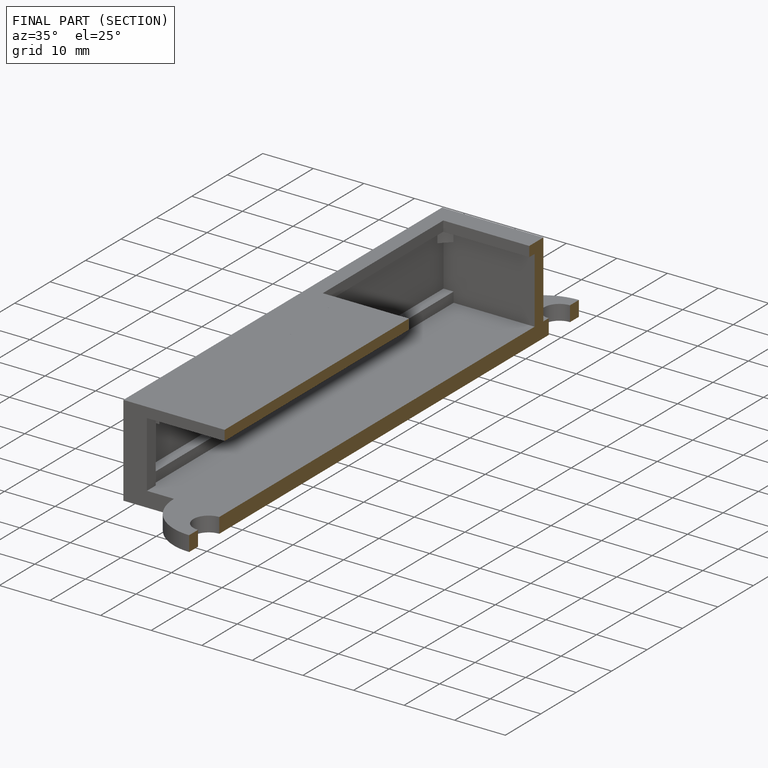
[diagram: finished part — half-section view (interior)]
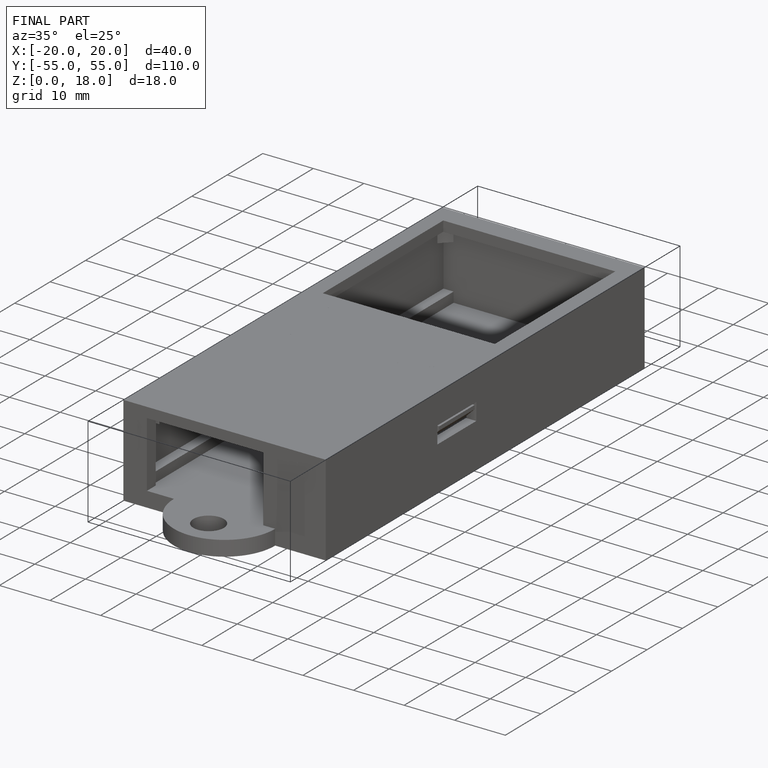
[diagram: finished part — iso view with bounding-box wireframe]
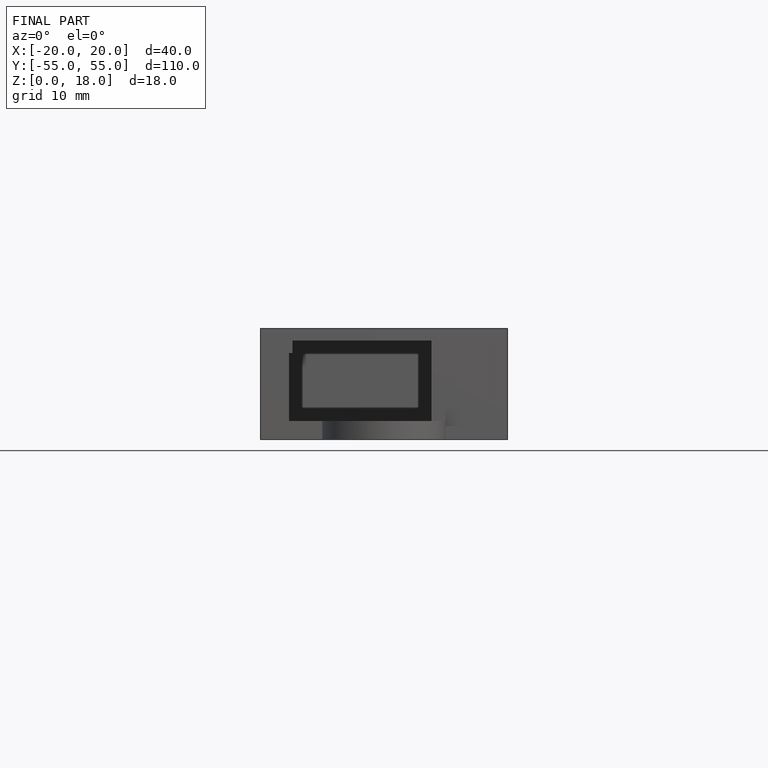
[diagram: finished part — front view with bounding-box wireframe]
